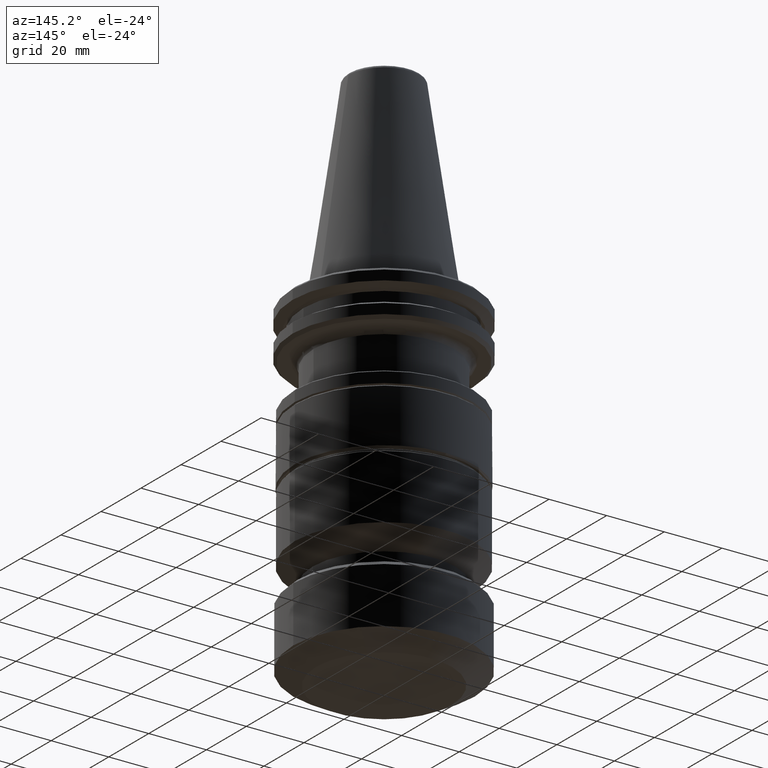
[diagram: clean part render]
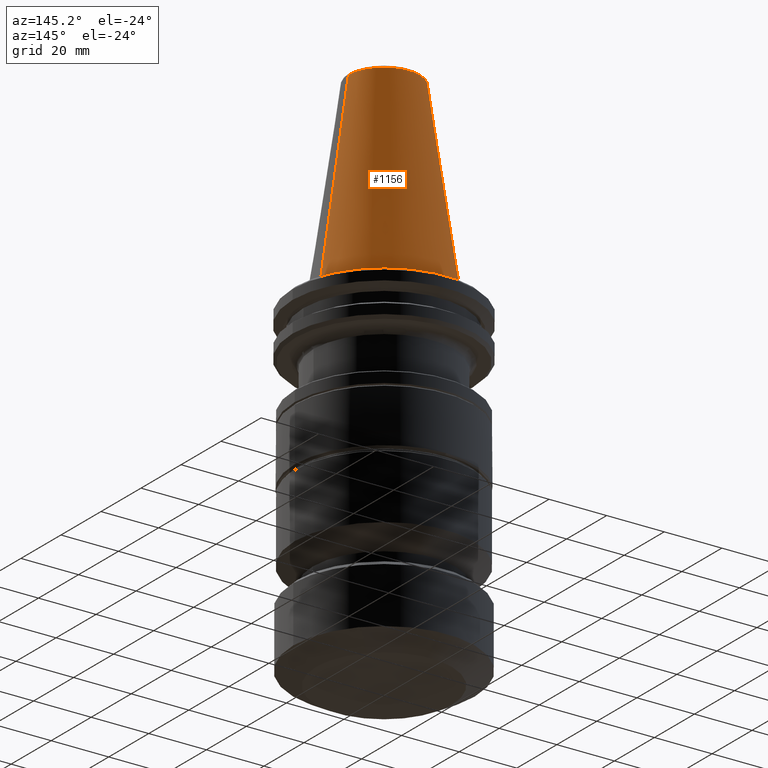
[diagram: same view with one face highlighted and labeled with its STEP entity id]
A machine part, auxiliary view. The second image highlights one B-rep face of the part: STEP entity #1156.
In plain terms, the highlighted conical surface has half-angle 8.297 deg.
Its self-contained STEP definition (entity closure, byte-faithful):
#88 = EDGE_LOOP ( 'NONE', ( #1937, #1216, #395, #1653 ) ) ;
#127 = AXIS2_PLACEMENT_3D ( 'NONE', #923, #755, #850 ) ;
#208 = CIRCLE ( 'NONE', #1999, 12.37469540292147000 ) ;
#227 = DIRECTION ( 'NONE',  ( 0.0000000000000000000, 0.0000000000000000000, -1.000000000000000000 ) ) ;
#241 = CARTESIAN_POINT ( 'NONE',  ( 0.0000000000000000000, 0.0000000000000000000, 67.54430822688355800 ) ) ;
#248 = DIRECTION ( 'NONE',  ( -1.000000000000000000, 0.0000000000000000000, 0.0000000000000000000 ) ) ;
#249 = DIRECTION ( 'NONE',  ( 0.1443082268835100800, 1.767266081435206200E-017, -0.9895327865481452500 ) ) ;
#263 = CARTESIAN_POINT ( 'NONE',  ( 12.37469540292147000, 1.515463111561124600E-015, 67.54430822688355800 ) ) ;
#287 = CIRCLE ( 'NONE', #127, 22.22499999999972400 ) ;
#391 = VERTEX_POINT ( 'NONE', #1004 ) ;
#395 = ORIENTED_EDGE ( 'NONE', *, *, #1523, .T. ) ;
#488 = CARTESIAN_POINT ( 'NONE',  ( -22.22499999999972400, 2.721777511104958900E-015, 0.0000000000000000000 ) ) ;
#618 = CARTESIAN_POINT ( 'NONE',  ( 22.22499999999972400, 0.0000000000000000000, 0.0000000000000000000 ) ) ;
#672 = LINE ( 'NONE', #263, #1855 ) ;
#731 = DIRECTION ( 'NONE',  ( 1.000000000000000000, 0.0000000000000000000, 0.0000000000000000000 ) ) ;
#734 = DIRECTION ( 'NONE',  ( -0.0000000000000000000, -0.0000000000000000000, 1.000000000000000000 ) ) ;
#741 = CARTESIAN_POINT ( 'NONE',  ( 0.0000000000000000000, 0.0000000000000000000, 67.54430822688355800 ) ) ;
#755 = DIRECTION ( 'NONE',  ( -0.0000000000000000000, -0.0000000000000000000, 1.000000000000000000 ) ) ;
#793 = EDGE_CURVE ( 'NONE', #391, #1891, #208, .T. ) ;
#850 = DIRECTION ( 'NONE',  ( 1.000000000000000000, 0.0000000000000000000, 0.0000000000000000000 ) ) ;
#916 = VERTEX_POINT ( 'NONE', #618 ) ;
#923 = CARTESIAN_POINT ( 'NONE',  ( 0.0000000000000000000, 0.0000000000000000000, 0.0000000000000000000 ) ) ;
#976 = VECTOR ( 'NONE', #1470, 1000.000000000000100 ) ;
#996 = VERTEX_POINT ( 'NONE', #488 ) ;
#1004 = CARTESIAN_POINT ( 'NONE',  ( 12.37469540292147000, 2.118620311333042000E-015, 67.54430822688355800 ) ) ;
#1024 = LINE ( 'NONE', #1916, #976 ) ;
#1134 = EDGE_CURVE ( 'NONE', #391, #916, #672, .T. ) ;
#1156 = ADVANCED_FACE ( 'NONE', ( #1453 ), #1354, .T. ) ;
#1216 = ORIENTED_EDGE ( 'NONE', *, *, #1134, .T. ) ;
#1239 = CARTESIAN_POINT ( 'NONE',  ( -12.37469540292147000, 0.0000000000000000000, 67.54430822688355800 ) ) ;
#1354 = CONICAL_SURFACE ( 'NONE', #1931, 12.37469540292147000, 0.1448138461595623600 ) ;
#1453 = FACE_OUTER_BOUND ( 'NONE', #88, .T. ) ;
#1470 = DIRECTION ( 'NONE',  ( -0.1443082268835100800, 0.0000000000000000000, -0.9895327865481452500 ) ) ;
#1523 = EDGE_CURVE ( 'NONE', #916, #996, #287, .T. ) ;
#1602 = EDGE_CURVE ( 'NONE', #1891, #996, #1024, .T. ) ;
#1653 = ORIENTED_EDGE ( 'NONE', *, *, #1602, .F. ) ;
#1855 = VECTOR ( 'NONE', #249, 1000.000000000000100 ) ;
#1891 = VERTEX_POINT ( 'NONE', #1239 ) ;
#1916 = CARTESIAN_POINT ( 'NONE',  ( -12.37469540292147000, 0.0000000000000000000, 67.54430822688355800 ) ) ;
#1931 = AXIS2_PLACEMENT_3D ( 'NONE', #241, #227, #248 ) ;
#1937 = ORIENTED_EDGE ( 'NONE', *, *, #793, .F. ) ;
#1999 = AXIS2_PLACEMENT_3D ( 'NONE', #741, #734, #731 ) ;